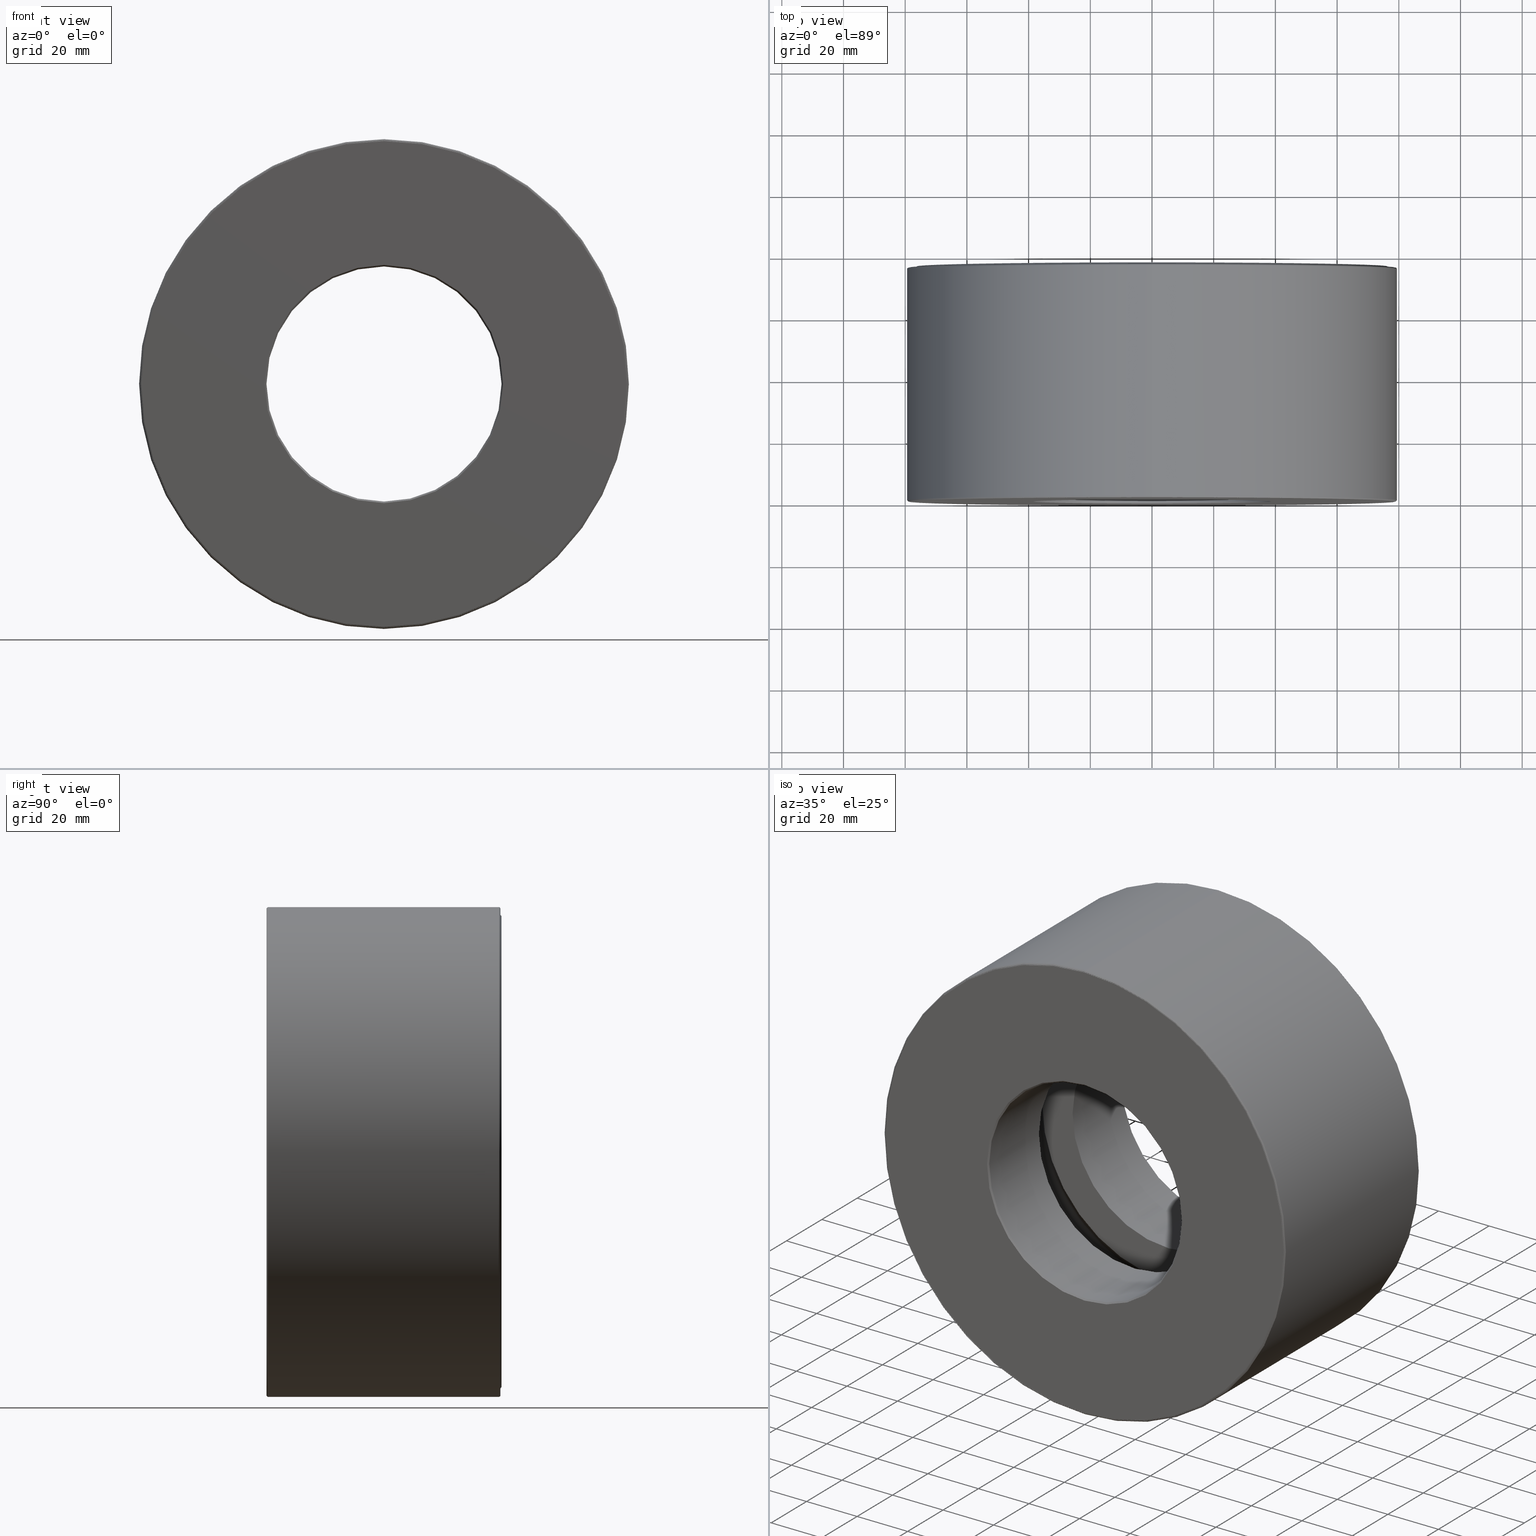
[diagram: canonical four-view strip — front | top / right | iso, engineering-drawing reading convention]
A machine part, canonical four-view strip (front | top / right | iso — engineering-drawing reading convention). The complete STEP part file that produces these views, byte-faithful:
ISO-10303-21;
HEADER;
FILE_DESCRIPTION (( 'STEP AP203' ),
    '1' );
FILE_NAME ('T-100-51.step',
    '2016-06-29T18:27:43',
    ( '' ),
    ( '' ),
    'SwSTEP 2.0',
    'SolidWorks 2016',
    '' );
FILE_SCHEMA (( 'CONFIG_CONTROL_DESIGN' ));
ENDSEC;

DATA;
#1 = DIRECTION ( 'NONE',  ( -0.0000000000000000000, 1.000000000000000000, -0.0000000000000000000 ) ) ;
#2 = ORIENTED_EDGE ( 'NONE', *, *, #132, .F. ) ;
#3 = EDGE_LOOP ( 'NONE', ( #439 ) ) ;
#4 = DIRECTION ( 'NONE',  ( 0.0000000000000000000, 0.0000000000000000000, 1.000000000000000000 ) ) ;
#5 = CC_DESIGN_PERSON_AND_ORGANIZATION_ASSIGNMENT ( #23, #426, ( #152 ) ) ;
#6 = CARTESIAN_POINT ( 'NONE',  ( 0.0000000000000000000, 2.911999999999999900, 3.097999999999999400 ) ) ;
#7 = VERTEX_POINT ( 'NONE', #51 ) ;
#8 = AXIS2_PLACEMENT_3D ( 'NONE', #465, #523, #582 ) ;
#9 = EDGE_LOOP ( 'NONE', ( #13 ) ) ;
#10 = CARTESIAN_POINT ( 'NONE',  ( 0.0000000000000000000, 3.000000000000000400, 0.0000000000000000000 ) ) ;
#11 = ADVANCED_FACE ( 'NONE', ( #369, #408 ), #186, .F. ) ;
#12 = VERTEX_POINT ( 'NONE', #409 ) ;
#13 = ORIENTED_EDGE ( 'NONE', *, *, #296, .T. ) ;
#14 = PERSON_AND_ORGANIZATION_ROLE ( 'creator' ) ;
#15 = DIRECTION ( 'NONE',  ( 0.0000000000000000000, -1.000000000000000000, 0.0000000000000000000 ) ) ;
#16 = EDGE_LOOP ( 'NONE', ( #534 ) ) ;
#17 = CC_DESIGN_APPROVAL ( #539, ( #152 ) ) ;
#18 = MANIFOLD_SOLID_BREP ( 'Revolve2[1]', #62 ) ;
#19 = PLANE ( 'NONE',  #141 ) ;
#20 = ADVANCED_FACE ( 'NONE', ( #551, #588 ), #345, .T. ) ;
#21 = AXIS2_PLACEMENT_3D ( 'NONE', #381, #427, #112 ) ;
#22 = CC_DESIGN_PERSON_AND_ORGANIZATION_ASSIGNMENT ( #36, #14, ( #152 ) ) ;
#23 = PERSON_AND_ORGANIZATION ( #290, #52 ) ;
#24 = VERTEX_POINT ( 'NONE', #604 ) ;
#25 = ADVANCED_FACE ( 'NONE', ( #313, #285 ), #248, .F. ) ;
#26 = ORIENTED_EDGE ( 'NONE', *, *, #417, .F. ) ;
#27 = CARTESIAN_POINT ( 'NONE',  ( 0.0000000000000000000, 1.874999999999999800, 0.0000000000000000000 ) ) ;
#28 = DIRECTION ( 'NONE',  ( 0.0000000000000000000, 0.0000000000000000000, 1.000000000000000000 ) ) ;
#29 = CARTESIAN_POINT ( 'NONE',  ( 0.0000000000000000000, 0.0000000000000000000, 0.0000000000000000000 ) ) ;
#30 = ADVANCED_BREP_SHAPE_REPRESENTATION ( 'T-100-51', ( #18, #300, #414, #325, #97, #310, #49 ), #162 ) ;
#31 = CIRCLE ( 'NONE', #390, 1.520000000000000200 ) ;
#32 = ORIENTED_EDGE ( 'NONE', *, *, #477, .F. ) ;
#33 = DIRECTION ( 'NONE',  ( -0.0000000000000000000, 1.000000000000000000, -0.0000000000000000000 ) ) ;
#34 = EDGE_LOOP ( 'NONE', ( #442 ) ) ;
#35 = DIRECTION ( 'NONE',  ( 0.0000000000000000000, 0.0000000000000000000, 1.000000000000000000 ) ) ;
#36 = PERSON_AND_ORGANIZATION ( #290, #52 ) ;
#37 = FACE_BOUND ( 'NONE', #276, .T. ) ;
#38 = DIRECTION ( 'NONE',  ( 0.0000000000000000000, 0.0000000000000000000, 1.000000000000000000 ) ) ;
#39 = EDGE_CURVE ( 'NONE', #351, #351, #122, .T. ) ;
#40 = CARTESIAN_POINT ( 'NONE',  ( 0.0000000000000000000, 2.965000000000000300, 0.0000000000000000000 ) ) ;
#41 = DIRECTION ( 'NONE',  ( -0.0000000000000000000, 1.000000000000000000, -0.0000000000000000000 ) ) ;
#42 = EDGE_CURVE ( 'NONE', #367, #367, #73, .T. ) ;
#43 = VERTEX_POINT ( 'NONE', #171 ) ;
#44 = CARTESIAN_POINT ( 'NONE',  ( -2.471000000000000100, 1.499999999999999800, 0.0000000000000000000 ) ) ;
#45 = CIRCLE ( 'NONE', #602, 3.125000000000000000 ) ;
#46 = EDGE_LOOP ( 'NONE', ( #396 ) ) ;
#47 = CARTESIAN_POINT ( 'NONE',  ( 0.0000000000000000000, 1.875000000000000000, 1.970999999999999900 ) ) ;
#48 = ORIENTED_EDGE ( 'NONE', *, *, #42, .T. ) ;
#49 = AXIS2_PLACEMENT_3D ( 'NONE', #412, #415, #378 ) ;
#50 = DIRECTION ( 'NONE',  ( -0.0000000000000000000, 1.000000000000000000, -0.0000000000000000000 ) ) ;
#51 = CARTESIAN_POINT ( 'NONE',  ( 0.0000000000000000000, 3.000000000000000400, 3.009999999999999800 ) ) ;
#52 = ORGANIZATION ( 'UNSPECIFIED', 'UNSPECIFIED', '' ) ;
#53 = AXIS2_PLACEMENT_3D ( 'NONE', #166, #124, #508 ) ;
#54 = CIRCLE ( 'NONE', #549, 3.105000000000000400 ) ;
#55 = CARTESIAN_POINT ( 'NONE',  ( 0.0000000000000000000, 0.0000000000000000000, 0.0000000000000000000 ) ) ;
#56 = COORDINATED_UNIVERSAL_TIME_OFFSET ( 5, 0, .BEHIND. ) ;
#57 = SHAPE_DEFINITION_REPRESENTATION ( #215, #30 ) ;
#58 = DIRECTION ( 'NONE',  ( 0.0000000000000000000, 0.0000000000000000000, 1.000000000000000000 ) ) ;
#59 = FACE_OUTER_BOUND ( 'NONE', #398, .T. ) ;
#60 = AXIS2_PLACEMENT_3D ( 'NONE', #189, #480, #536 ) ;
#61 = ADVANCED_FACE ( 'NONE', ( #159, #261 ), #221, .T. ) ;
#62 = CLOSED_SHELL ( 'NONE', ( #425, #66, #204, #486, #289, #292, #391, #20, #108, #68, #194, #343, #474, #492, #339, #382 ) ) ;
#63 = DIRECTION ( 'NONE',  ( 0.0000000000000000000, -1.000000000000000000, 0.0000000000000000000 ) ) ;
#64 = CARTESIAN_POINT ( 'NONE',  ( 0.0000000000000000000, 0.0000000000000000000, 0.0000000000000000000 ) ) ;
#65 = DIRECTION ( 'NONE',  ( 0.0000000000000000000, 0.0000000000000000000, 1.000000000000000000 ) ) ;
#66 = ADVANCED_FACE ( 'NONE', ( #172, #59 ), #19, .F. ) ;
#67 = CYLINDRICAL_SURFACE ( 'NONE', #441, 3.044999999999999900 ) ;
#68 = ADVANCED_FACE ( 'NONE', ( #561, #513 ), #286, .F. ) ;
#69 = PLANE ( 'NONE',  #509 ) ;
#70 = AXIS2_PLACEMENT_3D ( 'NONE', #288, #335, #293 ) ;
#71 = CALENDAR_DATE ( 2016, 29, 6 ) ;
#72 = FACE_OUTER_BOUND ( 'NONE', #16, .T. ) ;
#73 = CIRCLE ( 'NONE', #165, 3.109999999999999900 ) ;
#74 = EDGE_LOOP ( 'NONE', ( #135 ) ) ;
#75 = DIRECTION ( 'NONE',  ( 0.0000000000000000000, -1.000000000000000000, 0.0000000000000000000 ) ) ;
#76 = DIRECTION ( 'NONE',  ( 0.0000000000000000000, 0.0000000000000000000, 1.000000000000000000 ) ) ;
#77 = CC_DESIGN_APPROVAL ( #506, ( #95 ) ) ;
#78 = COORDINATED_UNIVERSAL_TIME_OFFSET ( 5, 0, .BEHIND. ) ;
#79 = FACE_BOUND ( 'NONE', #321, .T. ) ;
#80 = DIRECTION ( 'NONE',  ( 0.0000000000000000000, 0.0000000000000000000, 1.000000000000000000 ) ) ;
#81 = ORIENTED_EDGE ( 'NONE', *, *, #432, .T. ) ;
#82 = AXIS2_PLACEMENT_3D ( 'NONE', #500, #505, #218 ) ;
#83 = CC_DESIGN_SECURITY_CLASSIFICATION ( #95, ( #152 ) ) ;
#84 = DIRECTION ( 'NONE',  ( -0.0000000000000000000, 1.000000000000000000, 0.0000000000000000000 ) ) ;
#85 = COORDINATED_UNIVERSAL_TIME_OFFSET ( 5, 0, .BEHIND. ) ;
#86 = FACE_OUTER_BOUND ( 'NONE', #234, .T. ) ;
#87 = FACE_OUTER_BOUND ( 'NONE', #256, .T. ) ;
#88 = DIRECTION ( 'NONE',  ( -1.000000000000000000, 0.0000000000000000000, 6.982962677686265900E-015 ) ) ;
#89 = ORIENTED_EDGE ( 'NONE', *, *, #326, .T. ) ;
#90 = AXIS2_PLACEMENT_3D ( 'NONE', #10, #431, #548 ) ;
#91 = CARTESIAN_POINT ( 'NONE',  ( 0.0000000000000000000, 2.984999999999999900, 3.105000000000000400 ) ) ;
#92 = PERSON_AND_ORGANIZATION ( #290, #52 ) ;
#93 = DIRECTION ( 'NONE',  ( -3.491481338843133000E-015, 0.0000000000000000000, -1.000000000000000000 ) ) ;
#94 = CIRCLE ( 'NONE', #464, 3.097999999999999400 ) ;
#95 = SECURITY_CLASSIFICATION ( '', '', #574 ) ;
#96 = EDGE_LOOP ( 'NONE', ( #314 ) ) ;
#97 = MANIFOLD_SOLID_BREP ( 'BALLS[2]', #497 ) ;
#98 = CARTESIAN_POINT ( 'NONE',  ( 0.0000000000000000000, 2.979999999999999500, 0.0000000000000000000 ) ) ;
#99 = LOCAL_TIME ( 14, 27, 43.00000000000000000, #85 ) ;
#100 = AXIS2_PLACEMENT_3D ( 'NONE', #540, #191, #113 ) ;
#101 = VERTEX_POINT ( 'NONE', #233 ) ;
#102 = CIRCLE ( 'NONE', #498, 3.125000000000000000 ) ;
#103 = APPROVAL_STATUS ( 'not_yet_approved' ) ;
#104 = EDGE_LOOP ( 'NONE', ( #515 ) ) ;
#105 = CARTESIAN_POINT ( 'NONE',  ( 0.0000000000000000000, 1.125000000000000700, 0.0000000000000000000 ) ) ;
#106 = EDGE_CURVE ( 'NONE', #401, #401, #421, .T. ) ;
#107 = PERSON_AND_ORGANIZATION_ROLE ( 'creator' ) ;
#108 = ADVANCED_FACE ( 'NONE', ( #594, #606 ), #305, .T. ) ;
#109 = VERTEX_POINT ( 'NONE', #275 ) ;
#110 = FACE_OUTER_BOUND ( 'NONE', #354, .T. ) ;
#111 = ORIENTED_EDGE ( 'NONE', *, *, #411, .F. ) ;
#112 = DIRECTION ( 'NONE',  ( 0.0000000000000000000, 0.0000000000000000000, 1.000000000000000000 ) ) ;
#113 = DIRECTION ( 'NONE',  ( 0.0000000000000000000, 0.0000000000000000000, 1.000000000000000000 ) ) ;
#114 = AXIS2_PLACEMENT_3D ( 'NONE', #372, #571, #247 ) ;
#115 = PRODUCT_RELATED_PRODUCT_CATEGORY ( 'detail', '', ( #249 ) ) ;
#116 = CALENDAR_DATE ( 2016, 29, 6 ) ;
#117 = CIRCLE ( 'NONE', #459, 3.100000000000000100 ) ;
#118 = DIRECTION ( 'NONE',  ( -0.0000000000000000000, 1.000000000000000000, -0.0000000000000000000 ) ) ;
#119 = ORIENTED_EDGE ( 'NONE', *, *, #42, .F. ) ;
#120 = DIRECTION ( 'NONE',  ( 0.0000000000000000000, -1.000000000000000000, 0.0000000000000000000 ) ) ;
#121 = CARTESIAN_POINT ( 'NONE',  ( -9.787671951822628000E-016, 1.125000000000000400, 0.0000000000000000000 ) ) ;
#122 = CIRCLE ( 'NONE', #8, 1.970999999999999900 ) ;
#123 = ORIENTED_EDGE ( 'NONE', *, *, #336, .F. ) ;
#124 = DIRECTION ( 'NONE',  ( -0.0000000000000000000, 1.000000000000000000, -0.0000000000000000000 ) ) ;
#125 = ORIENTED_EDGE ( 'NONE', *, *, #493, .T. ) ;
#126 = PRODUCT_DEFINITION ( 'UNKNOWN', '', #152, #252 ) ;
#127 = FACE_OUTER_BOUND ( 'NONE', #187, .T. ) ;
#128 = DIRECTION ( 'NONE',  ( 1.047444401652940000E-014, 0.0000000000000000000, 1.000000000000000000 ) ) ;
#129 = ORIENTED_EDGE ( 'NONE', *, *, #514, .F. ) ;
#130 = AXIS2_PLACEMENT_3D ( 'NONE', #558, #168, #265 ) ;
#131 = CARTESIAN_POINT ( 'NONE',  ( 0.0000000000000000000, 1.874999999999999800, 1.500000000000000400 ) ) ;
#132 = EDGE_CURVE ( 'NONE', #12, #12, #45, .T. ) ;
#133 = CARTESIAN_POINT ( 'NONE',  ( 0.0000000000000000000, 1.874999999999999800, 3.098000000000000300 ) ) ;
#134 = CIRCLE ( 'NONE', #272, 1.500000000000000400 ) ;
#135 = ORIENTED_EDGE ( 'NONE', *, *, #106, .T. ) ;
#136 = CARTESIAN_POINT ( 'NONE',  ( 0.0000000000000000000, 2.965000000000000300, 3.105000000000000400 ) ) ;
#137 = EDGE_LOOP ( 'NONE', ( #274 ) ) ;
#138 = CC_DESIGN_DATE_AND_TIME_ASSIGNMENT ( #169, #470, ( #95 ) ) ;
#139 = DIRECTION ( 'NONE',  ( 6.982962677686265900E-015, -0.0000000000000000000, 1.000000000000000000 ) ) ;
#140 =( LENGTH_UNIT ( ) NAMED_UNIT ( * ) SI_UNIT ( $, .METRE. ) );
#141 = AXIS2_PLACEMENT_3D ( 'NONE', #155, #63, #485 ) ;
#142 = DATE_AND_TIME ( #116, #154 ) ;
#143 = FACE_OUTER_BOUND ( 'NONE', #481, .T. ) ;
#144 =( NAMED_UNIT ( * ) SI_UNIT ( $, .STERADIAN. ) SOLID_ANGLE_UNIT ( ) );
#145 = DIRECTION ( 'NONE',  ( 0.0000000000000000000, 0.0000000000000000000, 1.000000000000000000 ) ) ;
#146 = EDGE_CURVE ( 'NONE', #101, #101, #528, .T. ) ;
#147 = DIRECTION ( 'NONE',  ( 0.0000000000000000000, 0.0000000000000000000, 1.000000000000000000 ) ) ;
#148 = AXIS2_PLACEMENT_3D ( 'NONE', #179, #50, #371 ) ;
#149 = VERTEX_POINT ( 'NONE', #316 ) ;
#150 = EDGE_LOOP ( 'NONE', ( #89 ) ) ;
#151 = EDGE_LOOP ( 'NONE', ( #349 ) ) ;
#152 = PRODUCT_DEFINITION_FORMATION_WITH_SPECIFIED_SOURCE ( 'ANY', '', #249, .NOT_KNOWN. ) ;
#153 = DIRECTION ( 'NONE',  ( 0.0000000000000000000, 0.0000000000000000000, 1.000000000000000000 ) ) ;
#154 = LOCAL_TIME ( 14, 27, 43.00000000000000000, #419 ) ;
#155 = CARTESIAN_POINT ( 'NONE',  ( 1.146764549579209700E-015, 1.125000000000000200, 0.0000000000000000000 ) ) ;
#156 = DIRECTION ( 'NONE',  ( 0.0000000000000000000, 0.0000000000000000000, 1.000000000000000000 ) ) ;
#157 = DIRECTION ( 'NONE',  ( 0.0000000000000000000, 0.0000000000000000000, 1.000000000000000000 ) ) ;
#158 = VERTEX_POINT ( 'NONE', #6 ) ;
#159 = FACE_OUTER_BOUND ( 'NONE', #595, .T. ) ;
#160 = EDGE_LOOP ( 'NONE', ( #226 ) ) ;
#161 = CARTESIAN_POINT ( 'NONE',  ( 0.0000000000000000000, 2.911999999999999900, 0.0000000000000000000 ) ) ;
#162 =( GEOMETRIC_REPRESENTATION_CONTEXT ( 3 ) GLOBAL_UNCERTAINTY_ASSIGNED_CONTEXT ( ( #262 ) ) GLOBAL_UNIT_ASSIGNED_CONTEXT ( ( #365, #418, #144 ) ) REPRESENTATION_CONTEXT ( 'NONE', 'WORKASPACE' ) );
#163 = DIRECTION ( 'NONE',  ( 0.0000000000000000000, 0.0000000000000000000, 1.000000000000000000 ) ) ;
#164 = EDGE_LOOP ( 'NONE', ( #81 ) ) ;
#165 = AXIS2_PLACEMENT_3D ( 'NONE', #253, #473, #423 ) ;
#166 = CARTESIAN_POINT ( 'NONE',  ( 0.0000000000000000000, 1.125000000000000200, 0.0000000000000000000 ) ) ;
#167 = EDGE_CURVE ( 'NONE', #360, #360, #395, .T. ) ;
#168 = DIRECTION ( 'NONE',  ( -0.0000000000000000000, 1.000000000000000000, -0.0000000000000000000 ) ) ;
#169 = DATE_AND_TIME ( #555, #428 ) ;
#170 = VERTEX_POINT ( 'NONE', #136 ) ;
#171 = CARTESIAN_POINT ( 'NONE',  ( 0.0000000000000000000, 3.000000000000000400, 1.520000000000000700 ) ) ;
#172 = FACE_BOUND ( 'NONE', #490, .T. ) ;
#173 = ORIENTED_EDGE ( 'NONE', *, *, #323, .F. ) ;
#174 = AXIS2_PLACEMENT_3D ( 'NONE', #27, #491, #76 ) ;
#175 = DIRECTION ( 'NONE',  ( -0.0000000000000000000, 1.000000000000000000, -0.0000000000000000000 ) ) ;
#176 = DIRECTION ( 'NONE',  ( -0.0000000000000000000, 1.000000000000000000, -0.0000000000000000000 ) ) ;
#177 = CARTESIAN_POINT ( 'NONE',  ( 8.627450388281381400E-015, 1.499999999999999800, 2.471000000000000100 ) ) ;
#178 = FACE_OUTER_BOUND ( 'NONE', #294, .T. ) ;
#179 = CARTESIAN_POINT ( 'NONE',  ( 0.0000000000000000000, 2.984999999999999900, 0.0000000000000000000 ) ) ;
#180 = ORIENTED_EDGE ( 'NONE', *, *, #222, .F. ) ;
#181 = DATE_TIME_ROLE ( 'creation_date' ) ;
#182 = AXIS2_PLACEMENT_3D ( 'NONE', #278, #237, #4 ) ;
#183 = CALENDAR_DATE ( 2016, 29, 6 ) ;
#184 = MECHANICAL_CONTEXT ( 'NONE', #529, 'mechanical' ) ;
#185 = CIRCLE ( 'NONE', #366, 3.044999999999999900 ) ;
#186 = CYLINDRICAL_SURFACE ( 'NONE', #565, 1.500000000000000400 ) ;
#187 = EDGE_LOOP ( 'NONE', ( #364 ) ) ;
#188 = PLANE ( 'NONE',  #357 ) ;
#189 = CARTESIAN_POINT ( 'NONE',  ( 0.0000000000000000000, 0.0000000000000000000, 0.0000000000000000000 ) ) ;
#190 = FACE_OUTER_BOUND ( 'NONE', #322, .T. ) ;
#191 = DIRECTION ( 'NONE',  ( -0.0000000000000000000, 1.000000000000000000, -0.0000000000000000000 ) ) ;
#192 = ORIENTED_EDGE ( 'NONE', *, *, #167, .T. ) ;
#193 = ORIENTED_EDGE ( 'NONE', *, *, #585, .F. ) ;
#194 = ADVANCED_FACE ( 'NONE', ( #190, #299 ), #352, .F. ) ;
#195 = CARTESIAN_POINT ( 'NONE',  ( 1.087519105758067300E-015, 1.875000000000000000, 0.0000000000000000000 ) ) ;
#196 = AXIS2_PLACEMENT_3D ( 'NONE', #404, #554, #501 ) ;
#197 = ORIENTED_EDGE ( 'NONE', *, *, #541, .F. ) ;
#198 = DIRECTION ( 'NONE',  ( -0.0000000000000000000, 1.000000000000000000, -0.0000000000000000000 ) ) ;
#199 = ADVANCED_FACE ( 'NONE', ( #271, #230 ), #188, .T. ) ;
#200 = DATE_AND_TIME ( #183, #537 ) ;
#201 = DIRECTION ( 'NONE',  ( -0.0000000000000000000, 1.000000000000000000, -0.0000000000000000000 ) ) ;
#202 = FACE_OUTER_BOUND ( 'NONE', #580, .T. ) ;
#203 = FACE_OUTER_BOUND ( 'NONE', #3, .T. ) ;
#204 = ADVANCED_FACE ( 'NONE', ( #538, #110 ), #479, .F. ) ;
#205 = ORIENTED_EDGE ( 'NONE', *, *, #585, .T. ) ;
#206 = DIRECTION ( 'NONE',  ( 0.0000000000000000000, 0.0000000000000000000, 1.000000000000000000 ) ) ;
#207 = PLANE ( 'NONE',  #488 ) ;
#208 = AXIS2_PLACEMENT_3D ( 'NONE', #40, #223, #306 ) ;
#209 = DIRECTION ( 'NONE',  ( -0.0000000000000000000, 1.000000000000000000, -0.0000000000000000000 ) ) ;
#210 = APPROVAL_DATE_TIME ( #142, #539 ) ;
#211 = FACE_BOUND ( 'NONE', #104, .T. ) ;
#212 = DIRECTION ( 'NONE',  ( 0.0000000000000000000, -1.000000000000000000, 0.0000000000000000000 ) ) ;
#213 = ORIENTED_EDGE ( 'NONE', *, *, #132, .T. ) ;
#214 = CC_DESIGN_DATE_AND_TIME_ASSIGNMENT ( #279, #181, ( #126 ) ) ;
#215 = PRODUCT_DEFINITION_SHAPE ( 'NONE', 'NONE',  #126 ) ;
#216 = CARTESIAN_POINT ( 'NONE',  ( 0.0000000000000000000, 3.000000000000000400, 0.0000000000000000000 ) ) ;
#217 = CARTESIAN_POINT ( 'NONE',  ( -4.033240148126385900E-015, 1.875000000000000000, 0.0000000000000000000 ) ) ;
#218 = DIRECTION ( 'NONE',  ( 0.0000000000000000000, 0.0000000000000000000, 1.000000000000000000 ) ) ;
#219 = APPROVAL_DATE_TIME ( #200, #434 ) ;
#220 = FACE_OUTER_BOUND ( 'NONE', #96, .T. ) ;
#221 = CYLINDRICAL_SURFACE ( 'NONE', #114, 3.097999999999999400 ) ;
#222 = EDGE_CURVE ( 'NONE', #170, #170, #383, .T. ) ;
#223 = DIRECTION ( 'NONE',  ( -0.0000000000000000000, 1.000000000000000000, 0.0000000000000000000 ) ) ;
#224 = EDGE_LOOP ( 'NONE', ( #119 ) ) ;
#225 = CARTESIAN_POINT ( 'NONE',  ( 0.0000000000000000000, 2.979999999999999500, 1.500000000000000400 ) ) ;
#226 = ORIENTED_EDGE ( 'NONE', *, *, #258, .F. ) ;
#227 = CARTESIAN_POINT ( 'NONE',  ( 0.0000000000000000000, 2.979999999999999500, 0.0000000000000000000 ) ) ;
#228 = FACE_OUTER_BOUND ( 'NONE', #151, .T. ) ;
#229 = CARTESIAN_POINT ( 'NONE',  ( 0.0000000000000000000, 1.125000000000000200, 0.0000000000000000000 ) ) ;
#230 = FACE_OUTER_BOUND ( 'NONE', #590, .T. ) ;
#231 = ORIENTED_EDGE ( 'NONE', *, *, #146, .F. ) ;
#232 = AXIS2_PLACEMENT_3D ( 'NONE', #44, #516, #319 ) ;
#233 = CARTESIAN_POINT ( 'NONE',  ( 0.0000000000000000000, 1.875000000000000000, 2.971000000000000100 ) ) ;
#234 = EDGE_LOOP ( 'NONE', ( #572 ) ) ;
#235 = ORIENTED_EDGE ( 'NONE', *, *, #363, .T. ) ;
#236 = DIRECTION ( 'NONE',  ( 0.0000000000000000000, 0.0000000000000000000, 1.000000000000000000 ) ) ;
#237 = DIRECTION ( 'NONE',  ( -0.0000000000000000000, 1.000000000000000000, -0.0000000000000000000 ) ) ;
#238 = AXIS2_PLACEMENT_3D ( 'NONE', #309, #597, #128 ) ;
#239 = APPROVAL_PERSON_ORGANIZATION ( #92, #506, #525 ) ;
#240 = FACE_OUTER_BOUND ( 'NONE', #530, .T. ) ;
#241 = EDGE_LOOP ( 'NONE', ( #32 ) ) ;
#242 = CARTESIAN_POINT ( 'NONE',  ( 0.0000000000000000000, 0.0000000000000000000, 0.0000000000000000000 ) ) ;
#243 = PLANE ( 'NONE',  #90 ) ;
#244 = ADVANCED_FACE ( 'NONE', ( #461, #211 ), #243, .T. ) ;
#245 = APPLICATION_PROTOCOL_DEFINITION ( 'international standard', 'config_control_design', 1994, #529 ) ;
#246 = VERTEX_POINT ( 'NONE', #317 ) ;
#247 = DIRECTION ( 'NONE',  ( 0.0000000000000000000, 0.0000000000000000000, 1.000000000000000000 ) ) ;
#248 = TOROIDAL_SURFACE ( 'NONE', #182, 2.471000000000000100, 0.6250000000000003300 ) ;
#249 = PRODUCT ( 'T-100-51', 'T-100-51', '', ( #184 ) ) ;
#250 = ORIENTED_EDGE ( 'NONE', *, *, #167, .F. ) ;
#251 = CLOSED_SHELL ( 'NONE', ( #386, #25, #199, #11, #532, #244, #437, #61 ) ) ;
#252 = DESIGN_CONTEXT ( 'detailed design', #374, 'design' ) ;
#253 = CARTESIAN_POINT ( 'NONE',  ( 0.0000000000000000000, -2.433052119357234800E-016, 0.0000000000000000000 ) ) ;
#254 = CARTESIAN_POINT ( 'NONE',  ( 0.0000000000000000000, 0.02000000000000087800, 0.0000000000000000000 ) ) ;
#255 = TOROIDAL_SURFACE ( 'NONE', #524, 3.105000000000000400, 0.01999999999999951500 ) ;
#256 = EDGE_LOOP ( 'NONE', ( #250 ) ) ;
#257 = AXIS2_PLACEMENT_3D ( 'NONE', #254, #575, #65 ) ;
#258 = EDGE_CURVE ( 'NONE', #373, #373, #578, .T. ) ;
#259 = DIRECTION ( 'NONE',  ( -0.0000000000000000000, 1.000000000000000000, -0.0000000000000000000 ) ) ;
#260 = FACE_BOUND ( 'NONE', #329, .T. ) ;
#261 = FACE_OUTER_BOUND ( 'NONE', #499, .T. ) ;
#262 = UNCERTAINTY_MEASURE_WITH_UNIT (LENGTH_MEASURE( 1.000000000000000100E-005 ), #365, 'distance_accuracy_value', 'NONE');
#263 = ORIENTED_EDGE ( 'NONE', *, *, #541, .T. ) ;
#264 = PLANE ( 'NONE',  #573 ) ;
#265 = DIRECTION ( 'NONE',  ( 0.0000000000000000000, 0.0000000000000000000, 1.000000000000000000 ) ) ;
#266 = AXIS2_PLACEMENT_3D ( 'NONE', #98, #175, #512 ) ;
#267 = CONICAL_SURFACE ( 'NONE', #347, 3.009999999999999800, 0.7853981633974450600 ) ;
#268 = DIRECTION ( 'NONE',  ( -0.0000000000000000000, 1.000000000000000000, -0.0000000000000000000 ) ) ;
#269 = CARTESIAN_POINT ( 'NONE',  ( 0.0000000000000000000, 1.125000000000000200, 3.105000000000000900 ) ) ;
#270 = VERTEX_POINT ( 'NONE', #131 ) ;
#271 = FACE_BOUND ( 'NONE', #318, .T. ) ;
#272 = AXIS2_PLACEMENT_3D ( 'NONE', #227, #1, #236 ) ;
#273 = CARTESIAN_POINT ( 'NONE',  ( 0.0000000000000000000, -2.433052119357234800E-016, 3.109999999999999900 ) ) ;
#274 = ORIENTED_EDGE ( 'NONE', *, *, #323, .T. ) ;
#275 = CARTESIAN_POINT ( 'NONE',  ( 0.0000000000000000000, 0.004999999999999268100, 3.105000000000000900 ) ) ;
#276 = EDGE_LOOP ( 'NONE', ( #173 ) ) ;
#277 = EDGE_CURVE ( 'NONE', #158, #158, #94, .T. ) ;
#278 = CARTESIAN_POINT ( 'NONE',  ( 0.0000000000000000000, 1.499999999999999800, 0.0000000000000000000 ) ) ;
#279 = DATE_AND_TIME ( #71, #99 ) ;
#280 = CARTESIAN_POINT ( 'NONE',  ( 0.0000000000000000000, 1.125000000000000700, 1.500000000000000400 ) ) ;
#281 = FACE_BOUND ( 'NONE', #320, .T. ) ;
#282 = AXIS2_PLACEMENT_3D ( 'NONE', #435, #583, #206 ) ;
#283 = APPROVAL_DATE_TIME ( #387, #506 ) ;
#284 = FACE_BOUND ( 'NONE', #34, .T. ) ;
#285 = FACE_OUTER_BOUND ( 'NONE', #598, .T. ) ;
#286 = PLANE ( 'NONE',  #21 ) ;
#287 = ORIENTED_EDGE ( 'NONE', *, *, #444, .T. ) ;
#288 = CARTESIAN_POINT ( 'NONE',  ( 0.0000000000000000000, -2.433052119357234800E-016, 0.0000000000000000000 ) ) ;
#289 = ADVANCED_FACE ( 'NONE', ( #430, #178 ), #67, .F. ) ;
#290 = PERSON ( 'UNSPECIFIED', 'UNSPECIFIED', 'UNSPECIFIED', ('UNSPECIFIED'), ('UNSPECIFIED'), ('UNSPECIFIED') ) ;
#291 = DIRECTION ( 'NONE',  ( 0.0000000000000000000, 0.0000000000000000000, 1.000000000000000000 ) ) ;
#292 = ADVANCED_FACE ( 'NONE', ( #79, #566 ), #69, .F. ) ;
#293 = DIRECTION ( 'NONE',  ( 0.0000000000000000000, 0.0000000000000000000, 1.000000000000000000 ) ) ;
#294 = EDGE_LOOP ( 'NONE', ( #125 ) ) ;
#295 = AXIS2_PLACEMENT_3D ( 'NONE', #348, #118, #589 ) ;
#296 = EDGE_CURVE ( 'NONE', #109, #109, #469, .T. ) ;
#297 = LENGTH_MEASURE_WITH_UNIT ( LENGTH_MEASURE( 0.02539999999999999900 ), #140 );
#298 = FACE_BOUND ( 'NONE', #463, .T. ) ;
#299 = FACE_OUTER_BOUND ( 'NONE', #9, .T. ) ;
#300 = MANIFOLD_SOLID_BREP ( 'Revolve2[2]', #251 ) ;
#301 = EDGE_LOOP ( 'NONE', ( #129 ) ) ;
#302 = CARTESIAN_POINT ( 'NONE',  ( 0.0000000000000000000, 0.0000000000000000000, 0.0000000000000000000 ) ) ;
#303 = AXIS2_PLACEMENT_3D ( 'NONE', #229, #176, #315 ) ;
#304 = EDGE_CURVE ( 'NONE', #560, #560, #102, .T. ) ;
#305 = CONICAL_SURFACE ( 'NONE', #70, 3.109999999999999900, 0.7853981633974492800 ) ;
#306 = DIRECTION ( 'NONE',  ( 0.0000000000000000000, 0.0000000000000000000, 1.000000000000000000 ) ) ;
#307 = CARTESIAN_POINT ( 'NONE',  ( 0.0000000000000000000, -2.433052119357234300E-016, 0.0000000000000000000 ) ) ;
#308 = EDGE_LOOP ( 'NONE', ( #507 ) ) ;
#309 = CARTESIAN_POINT ( 'NONE',  ( -2.588235116484414700E-014, 1.499999999999999800, -2.471000000000000100 ) ) ;
#310 = MANIFOLD_SOLID_BREP ( 'BALLS[3]', #334 ) ;
#311 = AXIS2_PLACEMENT_3D ( 'NONE', #29, #342, #28 ) ;
#312 = SPHERICAL_SURFACE ( 'NONE', #232, 0.6250000000000000000 ) ;
#313 = FACE_OUTER_BOUND ( 'NONE', #471, .T. ) ;
#314 = ORIENTED_EDGE ( 'NONE', *, *, #304, .T. ) ;
#315 = DIRECTION ( 'NONE',  ( 0.0000000000000000000, 0.0000000000000000000, 1.000000000000000000 ) ) ;
#316 = CARTESIAN_POINT ( 'NONE',  ( 0.0000000000000000000, 0.0000000000000000000, 1.520000000000000200 ) ) ;
#317 = CARTESIAN_POINT ( 'NONE',  ( 0.0000000000000000000, 1.125000000000000200, 1.970999999999999900 ) ) ;
#318 = EDGE_LOOP ( 'NONE', ( #546 ) ) ;
#319 = DIRECTION ( 'NONE',  ( 1.000000000000000000, 0.0000000000000000000, 0.0000000000000000000 ) ) ;
#320 = EDGE_LOOP ( 'NONE', ( #192 ) ) ;
#321 = EDGE_LOOP ( 'NONE', ( #552 ) ) ;
#322 = EDGE_LOOP ( 'NONE', ( #26 ) ) ;
#323 = EDGE_CURVE ( 'NONE', #7, #7, #447, .T. ) ;
#324 = PERSON_AND_ORGANIZATION_ROLE ( 'classification_officer' ) ;
#325 = MANIFOLD_SOLID_BREP ( 'BALLS[1]', #379 ) ;
#326 = EDGE_CURVE ( 'NONE', #550, #550, #54, .T. ) ;
#327 = ORIENTED_EDGE ( 'NONE', *, *, #222, .T. ) ;
#328 = APPROVAL_ROLE ( '' ) ;
#329 = EDGE_LOOP ( 'NONE', ( #235 ) ) ;
#330 = DIRECTION ( 'NONE',  ( -0.0000000000000000000, 1.000000000000000000, -0.0000000000000000000 ) ) ;
#331 = AXIS2_PLACEMENT_3D ( 'NONE', #55, #330, #145 ) ;
#332 = DIRECTION ( 'NONE',  ( 0.0000000000000000000, -0.0000000000000000000, -1.000000000000000000 ) ) ;
#333 = PERSON_AND_ORGANIZATION ( #290, #52 ) ;
#334 = CLOSED_SHELL ( 'NONE', ( #484 ) ) ;
#335 = DIRECTION ( 'NONE',  ( -0.0000000000000000000, 1.000000000000000000, -0.0000000000000000000 ) ) ;
#336 = EDGE_CURVE ( 'NONE', #24, #24, #556, .T. ) ;
#337 = ORIENTED_EDGE ( 'NONE', *, *, #39, .T. ) ;
#338 = DIRECTION ( 'NONE',  ( -0.0000000000000000000, 1.000000000000000000, -0.0000000000000000000 ) ) ;
#339 = ADVANCED_FACE ( 'NONE', ( #87, #456 ), #478, .F. ) ;
#340 = DIRECTION ( 'NONE',  ( -0.0000000000000000000, 1.000000000000000000, -0.0000000000000000000 ) ) ;
#341 = VERTEX_POINT ( 'NONE', #225 ) ;
#342 = DIRECTION ( 'NONE',  ( -0.0000000000000000000, 1.000000000000000000, -0.0000000000000000000 ) ) ;
#343 = ADVANCED_FACE ( 'NONE', ( #203, #380 ), #527, .T. ) ;
#344 = CIRCLE ( 'NONE', #148, 3.044999999999999900 ) ;
#345 = CYLINDRICAL_SURFACE ( 'NONE', #331, 3.125000000000000000 ) ;
#346 = ORIENTED_EDGE ( 'NONE', *, *, #39, .F. ) ;
#347 = AXIS2_PLACEMENT_3D ( 'NONE', #402, #212, #450 ) ;
#348 = CARTESIAN_POINT ( 'NONE',  ( 0.0000000000000000000, -2.433052119357234300E-016, 0.0000000000000000000 ) ) ;
#349 = ORIENTED_EDGE ( 'NONE', *, *, #432, .F. ) ;
#350 = DIRECTION ( 'NONE',  ( 0.0000000000000000000, 0.0000000000000000000, 1.000000000000000000 ) ) ;
#351 = VERTEX_POINT ( 'NONE', #47 ) ;
#352 = CYLINDRICAL_SURFACE ( 'NONE', #60, 3.105000000000000900 ) ;
#353 = CARTESIAN_POINT ( 'NONE',  ( 0.0000000000000000000, 0.0000000000000000000, 0.0000000000000000000 ) ) ;
#354 = EDGE_LOOP ( 'NONE', ( #327 ) ) ;
#355 = CARTESIAN_POINT ( 'NONE',  ( 0.0000000000000000000, -2.438577023761910900E-016, 0.0000000000000000000 ) ) ;
#356 = PLANE ( 'NONE',  #533 ) ;
#357 = AXIS2_PLACEMENT_3D ( 'NONE', #195, #15, #332 ) ;
#358 = DIRECTION ( 'NONE',  ( 0.0000000000000000000, 0.0000000000000000000, 1.000000000000000000 ) ) ;
#359 = PERSON_AND_ORGANIZATION ( #290, #52 ) ;
#360 = VERTEX_POINT ( 'NONE', #562 ) ;
#361 = DIRECTION ( 'NONE',  ( 0.0000000000000000000, -1.000000000000000000, 0.0000000000000000000 ) ) ;
#362 = ORIENTED_EDGE ( 'NONE', *, *, #417, .T. ) ;
#363 = EDGE_CURVE ( 'NONE', #149, #149, #31, .T. ) ;
#364 = ORIENTED_EDGE ( 'NONE', *, *, #277, .T. ) ;
#365 =( CONVERSION_BASED_UNIT ( 'INCH', #297 ) LENGTH_UNIT ( ) NAMED_UNIT ( #584 ) );
#366 = AXIS2_PLACEMENT_3D ( 'NONE', #564, #405, #517 ) ;
#367 = VERTEX_POINT ( 'NONE', #273 ) ;
#368 = CARTESIAN_POINT ( 'NONE',  ( 0.0000000000000000000, 2.965000000000000300, 3.044999999999999900 ) ) ;
#369 = FACE_OUTER_BOUND ( 'NONE', #579, .T. ) ;
#370 = EDGE_LOOP ( 'NONE', ( #2 ) ) ;
#371 = DIRECTION ( 'NONE',  ( 0.0000000000000000000, 0.0000000000000000000, 1.000000000000000000 ) ) ;
#372 = CARTESIAN_POINT ( 'NONE',  ( 0.0000000000000000000, 0.0000000000000000000, 0.0000000000000000000 ) ) ;
#373 = VERTEX_POINT ( 'NONE', #133 ) ;
#374 = APPLICATION_CONTEXT ( 'configuration controlled 3d designs of mechanical parts and assemblies' ) ;
#375 = EDGE_LOOP ( 'NONE', ( #180 ) ) ;
#376 = APPLICATION_PROTOCOL_DEFINITION ( 'international standard', 'config_control_design', 1994, #374 ) ;
#377 = AXIS2_PLACEMENT_3D ( 'NONE', #216, #446, #80 ) ;
#378 = DIRECTION ( 'NONE',  ( 1.000000000000000000, 0.0000000000000000000, 0.0000000000000000000 ) ) ;
#379 = CLOSED_SHELL ( 'NONE', ( #577 ) ) ;
#380 = FACE_BOUND ( 'NONE', #164, .T. ) ;
#381 = CARTESIAN_POINT ( 'NONE',  ( -6.487435601265028900E-032, -2.435814571559573400E-016, 0.0000000000000000000 ) ) ;
#382 = ADVANCED_FACE ( 'NONE', ( #416, #72 ), #207, .F. ) ;
#383 = CIRCLE ( 'NONE', #429, 3.105000000000000400 ) ;
#384 = ORIENTED_EDGE ( 'NONE', *, *, #106, .F. ) ;
#385 = DIRECTION ( 'NONE',  ( -0.0000000000000000000, 1.000000000000000000, -0.0000000000000000000 ) ) ;
#386 = ADVANCED_FACE ( 'NONE', ( #284, #468 ), #356, .T. ) ;
#387 = DATE_AND_TIME ( #521, #453 ) ;
#388 = SPHERICAL_SURFACE ( 'NONE', #238, 0.6250000000000000000 ) ;
#389 = DIRECTION ( 'NONE',  ( 0.0000000000000000000, 0.0000000000000000000, 1.000000000000000000 ) ) ;
#390 = AXIS2_PLACEMENT_3D ( 'NONE', #302, #33, #350 ) ;
#391 = ADVANCED_FACE ( 'NONE', ( #522, #220 ), #255, .T. ) ;
#392 = DIRECTION ( 'NONE',  ( -0.0000000000000000000, 1.000000000000000000, -0.0000000000000000000 ) ) ;
#393 = DIRECTION ( 'NONE',  ( 0.0000000000000000000, 0.0000000000000000000, 1.000000000000000000 ) ) ;
#394 = CIRCLE ( 'NONE', #82, 1.500000000000000400 ) ;
#395 = CIRCLE ( 'NONE', #257, 1.500000000000000200 ) ;
#396 = ORIENTED_EDGE ( 'NONE', *, *, #326, .F. ) ;
#397 = AXIS2_PLACEMENT_3D ( 'NONE', #413, #139, #88 ) ;
#398 = EDGE_LOOP ( 'NONE', ( #263 ) ) ;
#399 = AXIS2_PLACEMENT_3D ( 'NONE', #64, #340, #147 ) ;
#400 = DIRECTION ( 'NONE',  ( 0.0000000000000000000, 0.0000000000000000000, 1.000000000000000000 ) ) ;
#401 = VERTEX_POINT ( 'NONE', #280 ) ;
#402 = CARTESIAN_POINT ( 'NONE',  ( 0.0000000000000000000, 3.000000000000000400, 0.0000000000000000000 ) ) ;
#403 = AXIS2_PLACEMENT_3D ( 'NONE', #177, #519, #93 ) ;
#404 = CARTESIAN_POINT ( 'NONE',  ( 0.0000000000000000000, 0.02000000000000087800, 0.0000000000000000000 ) ) ;
#405 = DIRECTION ( 'NONE',  ( -0.0000000000000000000, 1.000000000000000000, -0.0000000000000000000 ) ) ;
#406 = VERTEX_POINT ( 'NONE', #368 ) ;
#407 = CIRCLE ( 'NONE', #53, 1.970999999999999900 ) ;
#408 = FACE_OUTER_BOUND ( 'NONE', #241, .T. ) ;
#409 = CARTESIAN_POINT ( 'NONE',  ( 0.0000000000000000000, 0.01499999999999997700, 3.125000000000000000 ) ) ;
#410 = ORIENTED_EDGE ( 'NONE', *, *, #258, .T. ) ;
#411 = EDGE_CURVE ( 'NONE', #246, #246, #407, .T. ) ;
#412 = CARTESIAN_POINT ( 'NONE',  ( 0.0000000000000000000, 0.0000000000000000000, 0.0000000000000000000 ) ) ;
#413 = CARTESIAN_POINT ( 'NONE',  ( 2.471000000000000100, 1.499999999999999800, -1.725490077656276300E-014 ) ) ;
#414 = MANIFOLD_SOLID_BREP ( 'Revolve3', #482 ) ;
#415 = DIRECTION ( 'NONE',  ( 0.0000000000000000000, 0.0000000000000000000, 1.000000000000000000 ) ) ;
#416 = FACE_BOUND ( 'NONE', #424, .T. ) ;
#417 = EDGE_CURVE ( 'NONE', #496, #496, #460, .T. ) ;
#418 =( NAMED_UNIT ( * ) PLANE_ANGLE_UNIT ( ) SI_UNIT ( $, .RADIAN. ) );
#419 = COORDINATED_UNIVERSAL_TIME_OFFSET ( 5, 0, .BEHIND. ) ;
#420 = CIRCLE ( 'NONE', #303, 3.105000000000000900 ) ;
#421 = CIRCLE ( 'NONE', #472, 1.500000000000000400 ) ;
#422 = PERSON_AND_ORGANIZATION_ROLE ( 'design_owner' ) ;
#423 = DIRECTION ( 'NONE',  ( 0.0000000000000000000, 0.0000000000000000000, 1.000000000000000000 ) ) ;
#424 = EDGE_LOOP ( 'NONE', ( #384 ) ) ;
#425 = ADVANCED_FACE ( 'NONE', ( #202, #240 ), #489, .F. ) ;
#426 = PERSON_AND_ORGANIZATION_ROLE ( 'design_supplier' ) ;
#427 = DIRECTION ( 'NONE',  ( -0.0000000000000000000, 1.000000000000000000, 0.0000000000000000000 ) ) ;
#428 = LOCAL_TIME ( 14, 27, 43.00000000000000000, #503 ) ;
#429 = AXIS2_PLACEMENT_3D ( 'NONE', #476, #531, #483 ) ;
#430 = FACE_OUTER_BOUND ( 'NONE', #457, .T. ) ;
#431 = DIRECTION ( 'NONE',  ( -0.0000000000000000000, 1.000000000000000000, 0.0000000000000000000 ) ) ;
#432 = EDGE_CURVE ( 'NONE', #605, #605, #117, .T. ) ;
#433 = CARTESIAN_POINT ( 'NONE',  ( 0.0000000000000000000, 2.984999999999999900, 0.0000000000000000000 ) ) ;
#434 = APPROVAL ( #467, 'UNSPECIFIED' ) ;
#435 = CARTESIAN_POINT ( 'NONE',  ( 0.0000000000000000000, 1.125000000000000000, 0.0000000000000000000 ) ) ;
#436 = VERTEX_POINT ( 'NONE', #269 ) ;
#437 = ADVANCED_FACE ( 'NONE', ( #127, #37 ), #267, .T. ) ;
#438 = CONICAL_SURFACE ( 'NONE', #266, 1.500000000000000400, 0.7853981633974346200 ) ;
#439 = ORIENTED_EDGE ( 'NONE', *, *, #296, .F. ) ;
#440 = DIRECTION ( 'NONE',  ( 0.0000000000000000000, -0.0000000000000000000, -1.000000000000000000 ) ) ;
#441 = AXIS2_PLACEMENT_3D ( 'NONE', #353, #495, #389 ) ;
#442 = ORIENTED_EDGE ( 'NONE', *, *, #146, .T. ) ;
#443 = CARTESIAN_POINT ( 'NONE',  ( 0.0000000000000000000, 2.965000000000000700, 0.0000000000000000000 ) ) ;
#444 = EDGE_CURVE ( 'NONE', #43, #43, #599, .T. ) ;
#445 = EDGE_LOOP ( 'NONE', ( #48 ) ) ;
#446 = DIRECTION ( 'NONE',  ( -0.0000000000000000000, 1.000000000000000000, -0.0000000000000000000 ) ) ;
#447 = CIRCLE ( 'NONE', #596, 3.009999999999999800 ) ;
#448 = ORIENTED_EDGE ( 'NONE', *, *, #336, .T. ) ;
#449 = PLANE ( 'NONE',  #208 ) ;
#450 = DIRECTION ( 'NONE',  ( 0.0000000000000000000, 0.0000000000000000000, -1.000000000000000000 ) ) ;
#451 = AXIS2_PLACEMENT_3D ( 'NONE', #553, #259, #156 ) ;
#452 = DIRECTION ( 'NONE',  ( 0.0000000000000000000, -0.0000000000000000000, -1.000000000000000000 ) ) ;
#453 = LOCAL_TIME ( 14, 27, 43.00000000000000000, #56 ) ;
#454 = SPHERICAL_SURFACE ( 'NONE', #397, 0.6250000000000000000 ) ;
#455 = CARTESIAN_POINT ( 'NONE',  ( 0.0000000000000000000, 2.965000000000000700, 0.0000000000000000000 ) ) ;
#456 = FACE_OUTER_BOUND ( 'NONE', #74, .T. ) ;
#457 = EDGE_LOOP ( 'NONE', ( #193 ) ) ;
#458 = CARTESIAN_POINT ( 'NONE',  ( 0.0000000000000000000, 2.965000000000000700, 3.125000000000000000 ) ) ;
#459 = AXIS2_PLACEMENT_3D ( 'NONE', #307, #601, #38 ) ;
#460 = CIRCLE ( 'NONE', #557, 3.105000000000000900 ) ;
#461 = FACE_OUTER_BOUND ( 'NONE', #137, .T. ) ;
#462 = CARTESIAN_POINT ( 'NONE',  ( 0.0000000000000000000, -2.433052119357234300E-016, 3.100000000000000100 ) ) ;
#463 = EDGE_LOOP ( 'NONE', ( #205 ) ) ;
#464 = AXIS2_PLACEMENT_3D ( 'NONE', #161, #201, #35 ) ;
#465 = CARTESIAN_POINT ( 'NONE',  ( 0.0000000000000000000, 1.875000000000000000, 0.0000000000000000000 ) ) ;
#466 = CC_DESIGN_PERSON_AND_ORGANIZATION_ASSIGNMENT ( #568, #107, ( #126 ) ) ;
#467 = APPROVAL_STATUS ( 'not_yet_approved' ) ;
#468 = FACE_OUTER_BOUND ( 'NONE', #160, .T. ) ;
#469 = CIRCLE ( 'NONE', #451, 3.105000000000000900 ) ;
#470 = DATE_TIME_ROLE ( 'classification_date' ) ;
#471 = EDGE_LOOP ( 'NONE', ( #337 ) ) ;
#472 = AXIS2_PLACEMENT_3D ( 'NONE', #105, #385, #291 ) ;
#473 = DIRECTION ( 'NONE',  ( -0.0000000000000000000, 1.000000000000000000, -0.0000000000000000000 ) ) ;
#474 = ADVANCED_FACE ( 'NONE', ( #228, #260 ), #264, .F. ) ;
#475 = APPROVAL_STATUS ( 'not_yet_approved' ) ;
#476 = CARTESIAN_POINT ( 'NONE',  ( 0.0000000000000000000, 2.965000000000000300, 0.0000000000000000000 ) ) ;
#477 = EDGE_CURVE ( 'NONE', #270, #270, #394, .T. ) ;
#478 = CYLINDRICAL_SURFACE ( 'NONE', #311, 1.500000000000000400 ) ;
#479 = CYLINDRICAL_SURFACE ( 'NONE', #399, 3.105000000000000900 ) ;
#480 = DIRECTION ( 'NONE',  ( -0.0000000000000000000, 1.000000000000000000, -0.0000000000000000000 ) ) ;
#481 = EDGE_LOOP ( 'NONE', ( #287 ) ) ;
#482 = CLOSED_SHELL ( 'NONE', ( #581 ) ) ;
#483 = DIRECTION ( 'NONE',  ( 0.0000000000000000000, 0.0000000000000000000, 1.000000000000000000 ) ) ;
#484 = ADVANCED_FACE ( 'NONE', ( ), #388, .T. ) ;
#485 = DIRECTION ( 'NONE',  ( 0.0000000000000000000, -0.0000000000000000000, -1.000000000000000000 ) ) ;
#486 = ADVANCED_FACE ( 'NONE', ( #587, #298 ), #449, .F. ) ;
#487 = CARTESIAN_POINT ( 'NONE',  ( 0.0000000000000000000, 2.984999999999999900, 0.0000000000000000000 ) ) ;
#488 = AXIS2_PLACEMENT_3D ( 'NONE', #121, #120, #440 ) ;
#489 = TOROIDAL_SURFACE ( 'NONE', #130, 2.471000000000000100, 0.6250000000000000000 ) ;
#490 = EDGE_LOOP ( 'NONE', ( #123 ) ) ;
#491 = DIRECTION ( 'NONE',  ( -0.0000000000000000000, 1.000000000000000000, -0.0000000000000000000 ) ) ;
#492 = ADVANCED_FACE ( 'NONE', ( #86, #281 ), #504, .F. ) ;
#493 = EDGE_CURVE ( 'NONE', #593, #593, #344, .T. ) ;
#494 = EDGE_LOOP ( 'NONE', ( #362 ) ) ;
#495 = DIRECTION ( 'NONE',  ( -0.0000000000000000000, 1.000000000000000000, -0.0000000000000000000 ) ) ;
#496 = VERTEX_POINT ( 'NONE', #510 ) ;
#497 = CLOSED_SHELL ( 'NONE', ( #544 ) ) ;
#498 = AXIS2_PLACEMENT_3D ( 'NONE', #443, #392, #542 ) ;
#499 = EDGE_LOOP ( 'NONE', ( #570 ) ) ;
#500 = CARTESIAN_POINT ( 'NONE',  ( 0.0000000000000000000, 1.874999999999999800, 0.0000000000000000000 ) ) ;
#501 = DIRECTION ( 'NONE',  ( 0.0000000000000000000, 0.0000000000000000000, -1.000000000000000000 ) ) ;
#502 = CARTESIAN_POINT ( 'NONE',  ( -3.604393837355100200E-032, -1.216526059678617200E-016, 0.0000000000000000000 ) ) ;
#503 = COORDINATED_UNIVERSAL_TIME_OFFSET ( 5, 0, .BEHIND. ) ;
#504 = CONICAL_SURFACE ( 'NONE', #196, 1.500000000000000200, 0.7853981633974278500 ) ;
#505 = DIRECTION ( 'NONE',  ( -0.0000000000000000000, 1.000000000000000000, -0.0000000000000000000 ) ) ;
#506 = APPROVAL ( #103, 'UNSPECIFIED' ) ;
#507 = ORIENTED_EDGE ( 'NONE', *, *, #304, .F. ) ;
#508 = DIRECTION ( 'NONE',  ( 0.0000000000000000000, 0.0000000000000000000, 1.000000000000000000 ) ) ;
#509 = AXIS2_PLACEMENT_3D ( 'NONE', #433, #75, #591 ) ;
#510 = CARTESIAN_POINT ( 'NONE',  ( 0.0000000000000000000, -2.438577023761910900E-016, 3.105000000000000900 ) ) ;
#511 = FACE_BOUND ( 'NONE', #301, .T. ) ;
#512 = DIRECTION ( 'NONE',  ( 0.0000000000000000000, 0.0000000000000000000, 1.000000000000000000 ) ) ;
#513 = FACE_BOUND ( 'NONE', #494, .T. ) ;
#514 = EDGE_CURVE ( 'NONE', #341, #341, #134, .T. ) ;
#515 = ORIENTED_EDGE ( 'NONE', *, *, #444, .F. ) ;
#516 = DIRECTION ( 'NONE',  ( 0.0000000000000000000, 0.0000000000000000000, -1.000000000000000000 ) ) ;
#517 = DIRECTION ( 'NONE',  ( 0.0000000000000000000, 0.0000000000000000000, 1.000000000000000000 ) ) ;
#518 = EDGE_LOOP ( 'NONE', ( #213 ) ) ;
#519 = DIRECTION ( 'NONE',  ( -1.000000000000000000, 0.0000000000000000000, 3.491481338843133000E-015 ) ) ;
#520 = DIRECTION ( 'NONE',  ( -0.0000000000000000000, 1.000000000000000000, -0.0000000000000000000 ) ) ;
#521 = CALENDAR_DATE ( 2016, 29, 6 ) ;
#522 = FACE_OUTER_BOUND ( 'NONE', #46, .T. ) ;
#523 = DIRECTION ( 'NONE',  ( -0.0000000000000000000, 1.000000000000000000, -0.0000000000000000000 ) ) ;
#524 = AXIS2_PLACEMENT_3D ( 'NONE', #455, #268, #400 ) ;
#525 = APPROVAL_ROLE ( '' ) ;
#526 = APPROVAL_ROLE ( '' ) ;
#527 = CONICAL_SURFACE ( 'NONE', #295, 3.100000000000000100, 0.7853981633975601900 ) ;
#528 = CIRCLE ( 'NONE', #100, 2.971000000000000100 ) ;
#529 = APPLICATION_CONTEXT ( 'configuration controlled 3d designs of mechanical parts and assemblies' ) ;
#530 = EDGE_LOOP ( 'NONE', ( #448 ) ) ;
#531 = DIRECTION ( 'NONE',  ( -0.0000000000000000000, 1.000000000000000000, -0.0000000000000000000 ) ) ;
#532 = ADVANCED_FACE ( 'NONE', ( #143, #511 ), #438, .F. ) ;
#533 = AXIS2_PLACEMENT_3D ( 'NONE', #217, #361, #452 ) ;
#534 = ORIENTED_EDGE ( 'NONE', *, *, #411, .T. ) ;
#535 = CARTESIAN_POINT ( 'NONE',  ( 0.0000000000000000000, 0.01499999999999997700, 0.0000000000000000000 ) ) ;
#536 = DIRECTION ( 'NONE',  ( 0.0000000000000000000, 0.0000000000000000000, 1.000000000000000000 ) ) ;
#537 = LOCAL_TIME ( 14, 27, 43.00000000000000000, #78 ) ;
#538 = FACE_OUTER_BOUND ( 'NONE', #563, .T. ) ;
#539 = APPROVAL ( #475, 'UNSPECIFIED' ) ;
#540 = CARTESIAN_POINT ( 'NONE',  ( 0.0000000000000000000, 1.875000000000000000, 0.0000000000000000000 ) ) ;
#541 = EDGE_CURVE ( 'NONE', #436, #436, #420, .T. ) ;
#542 = DIRECTION ( 'NONE',  ( 0.0000000000000000000, 0.0000000000000000000, 1.000000000000000000 ) ) ;
#543 = CC_DESIGN_PERSON_AND_ORGANIZATION_ASSIGNMENT ( #333, #422, ( #249 ) ) ;
#544 = ADVANCED_FACE ( 'NONE', ( ), #454, .T. ) ;
#545 = CARTESIAN_POINT ( 'NONE',  ( 0.0000000000000000000, 3.000000000000000400, 0.0000000000000000000 ) ) ;
#546 = ORIENTED_EDGE ( 'NONE', *, *, #477, .T. ) ;
#547 = APPROVAL_PERSON_ORGANIZATION ( #559, #539, #328 ) ;
#548 = DIRECTION ( 'NONE',  ( 0.0000000000000000000, 0.0000000000000000000, 1.000000000000000000 ) ) ;
#549 = AXIS2_PLACEMENT_3D ( 'NONE', #487, #198, #157 ) ;
#550 = VERTEX_POINT ( 'NONE', #91 ) ;
#551 = FACE_OUTER_BOUND ( 'NONE', #308, .T. ) ;
#552 = ORIENTED_EDGE ( 'NONE', *, *, #493, .F. ) ;
#553 = CARTESIAN_POINT ( 'NONE',  ( 0.0000000000000000000, 0.004999999999999268100, 0.0000000000000000000 ) ) ;
#554 = DIRECTION ( 'NONE',  ( 0.0000000000000000000, -1.000000000000000000, 0.0000000000000000000 ) ) ;
#555 = CALENDAR_DATE ( 2016, 29, 6 ) ;
#556 = CIRCLE ( 'NONE', #282, 2.971000000000000100 ) ;
#557 = AXIS2_PLACEMENT_3D ( 'NONE', #355, #41, #358 ) ;
#558 = CARTESIAN_POINT ( 'NONE',  ( 0.0000000000000000000, 1.499999999999999800, 0.0000000000000000000 ) ) ;
#559 = PERSON_AND_ORGANIZATION ( #290, #52 ) ;
#560 = VERTEX_POINT ( 'NONE', #458 ) ;
#561 = FACE_OUTER_BOUND ( 'NONE', #224, .T. ) ;
#562 = CARTESIAN_POINT ( 'NONE',  ( 0.0000000000000000000, 0.02000000000000087800, 1.500000000000000200 ) ) ;
#563 = EDGE_LOOP ( 'NONE', ( #197 ) ) ;
#564 = CARTESIAN_POINT ( 'NONE',  ( 0.0000000000000000000, 2.965000000000000300, 0.0000000000000000000 ) ) ;
#565 = AXIS2_PLACEMENT_3D ( 'NONE', #242, #520, #58 ) ;
#566 = FACE_OUTER_BOUND ( 'NONE', #150, .T. ) ;
#567 = CC_DESIGN_PERSON_AND_ORGANIZATION_ASSIGNMENT ( #359, #324, ( #95 ) ) ;
#568 = PERSON_AND_ORGANIZATION ( #290, #52 ) ;
#569 = SPHERICAL_SURFACE ( 'NONE', #403, 0.6250000000000000000 ) ;
#570 = ORIENTED_EDGE ( 'NONE', *, *, #277, .F. ) ;
#571 = DIRECTION ( 'NONE',  ( -0.0000000000000000000, 1.000000000000000000, -0.0000000000000000000 ) ) ;
#572 = ORIENTED_EDGE ( 'NONE', *, *, #363, .F. ) ;
#573 = AXIS2_PLACEMENT_3D ( 'NONE', #502, #84, #163 ) ;
#574 = SECURITY_CLASSIFICATION_LEVEL ( 'unclassified' ) ;
#575 = DIRECTION ( 'NONE',  ( -0.0000000000000000000, 1.000000000000000000, -0.0000000000000000000 ) ) ;
#576 = APPROVAL_PERSON_ORGANIZATION ( #586, #434, #526 ) ;
#577 = ADVANCED_FACE ( 'NONE', ( ), #569, .T. ) ;
#578 = CIRCLE ( 'NONE', #174, 3.098000000000000300 ) ;
#579 = EDGE_LOOP ( 'NONE', ( #600 ) ) ;
#580 = EDGE_LOOP ( 'NONE', ( #111 ) ) ;
#581 = ADVANCED_FACE ( 'NONE', ( ), #312, .T. ) ;
#582 = DIRECTION ( 'NONE',  ( 0.0000000000000000000, 0.0000000000000000000, 1.000000000000000000 ) ) ;
#583 = DIRECTION ( 'NONE',  ( -0.0000000000000000000, 1.000000000000000000, -0.0000000000000000000 ) ) ;
#584 = DIMENSIONAL_EXPONENTS ( 1.000000000000000000, 0.0000000000000000000, 0.0000000000000000000, 0.0000000000000000000, 0.0000000000000000000, 0.0000000000000000000, 0.0000000000000000000 ) ;
#585 = EDGE_CURVE ( 'NONE', #406, #406, #185, .T. ) ;
#586 = PERSON_AND_ORGANIZATION ( #290, #52 ) ;
#587 = FACE_OUTER_BOUND ( 'NONE', #375, .T. ) ;
#588 = FACE_OUTER_BOUND ( 'NONE', #518, .T. ) ;
#589 = DIRECTION ( 'NONE',  ( 0.0000000000000000000, 0.0000000000000000000, 1.000000000000000000 ) ) ;
#590 = EDGE_LOOP ( 'NONE', ( #346 ) ) ;
#591 = DIRECTION ( 'NONE',  ( 0.0000000000000000000, -0.0000000000000000000, -1.000000000000000000 ) ) ;
#592 = CC_DESIGN_APPROVAL ( #434, ( #126 ) ) ;
#593 = VERTEX_POINT ( 'NONE', #603 ) ;
#594 = FACE_OUTER_BOUND ( 'NONE', #370, .T. ) ;
#595 = EDGE_LOOP ( 'NONE', ( #410 ) ) ;
#596 = AXIS2_PLACEMENT_3D ( 'NONE', #545, #209, #393 ) ;
#597 = DIRECTION ( 'NONE',  ( 1.000000000000000000, 0.0000000000000000000, -1.047444401652940000E-014 ) ) ;
#598 = EDGE_LOOP ( 'NONE', ( #231 ) ) ;
#599 = CIRCLE ( 'NONE', #377, 1.520000000000000700 ) ;
#600 = ORIENTED_EDGE ( 'NONE', *, *, #514, .T. ) ;
#601 = DIRECTION ( 'NONE',  ( -0.0000000000000000000, 1.000000000000000000, -0.0000000000000000000 ) ) ;
#602 = AXIS2_PLACEMENT_3D ( 'NONE', #535, #338, #153 ) ;
#603 = CARTESIAN_POINT ( 'NONE',  ( 0.0000000000000000000, 2.984999999999999900, 3.044999999999999900 ) ) ;
#604 = CARTESIAN_POINT ( 'NONE',  ( 0.0000000000000000000, 1.125000000000000000, 2.971000000000000100 ) ) ;
#605 = VERTEX_POINT ( 'NONE', #462 ) ;
#606 = FACE_BOUND ( 'NONE', #445, .T. ) ;
ENDSEC;
END-ISO-10303-21;
